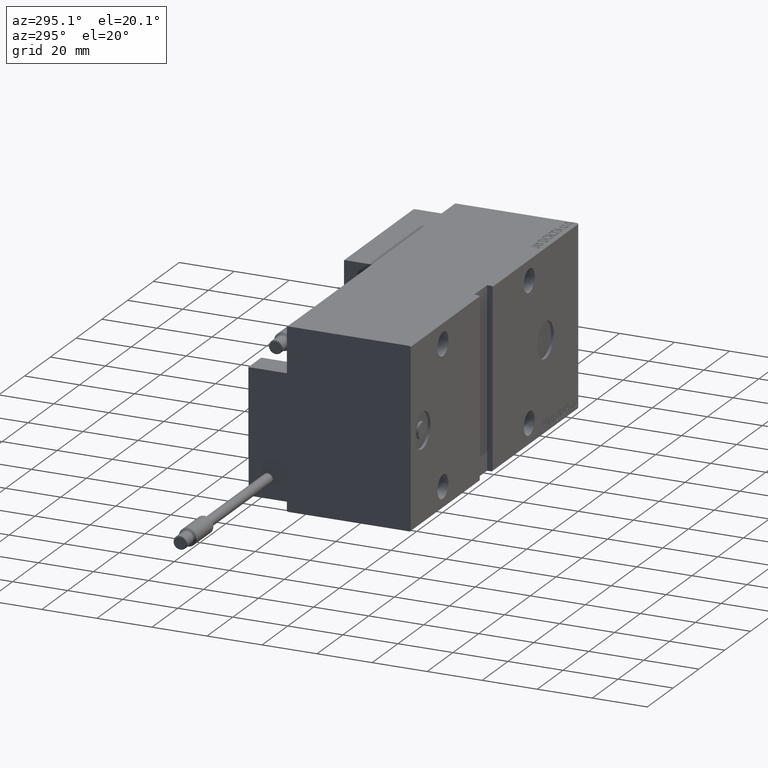
[diagram: clean part render]
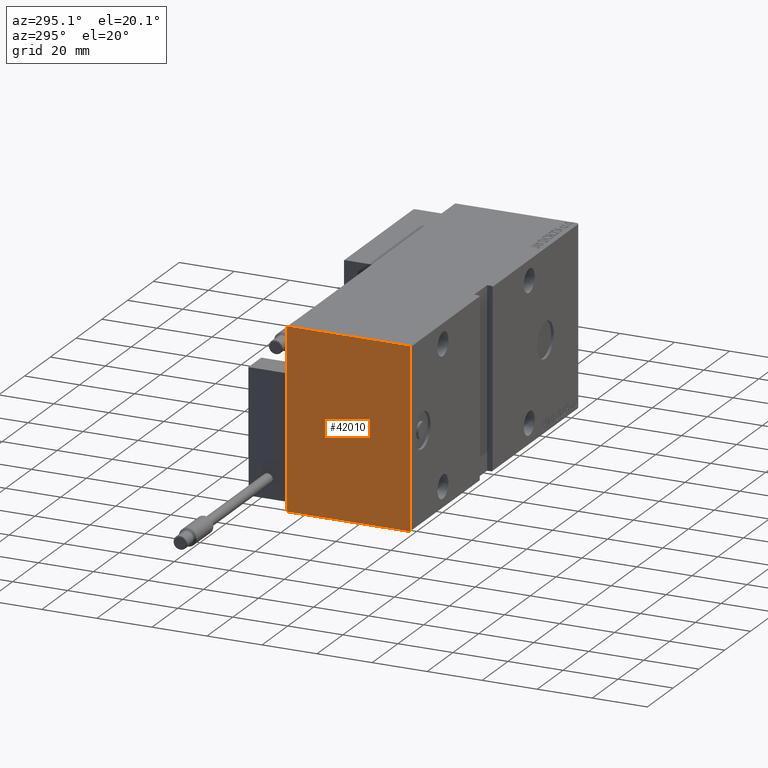
[diagram: same view with one face highlighted and labeled with its STEP entity id]
A machine part, auxiliary view. The second image highlights one B-rep face of the part: STEP entity #42010.
In plain terms, the highlighted planar face has unit normal (-1, 0, 0).
Its self-contained STEP definition (entity closure, byte-faithful):
#268 = EDGE_CURVE ( 'NONE', #49947, #3710, #23605, .T. ) ;
#685 = CARTESIAN_POINT ( 'NONE',  ( 130.0000000000000000, 0.000000000000000000, 0.000000000000000000 ) ) ;
#828 = DIRECTION ( 'NONE',  ( -0.000000000000000000, -0.7071067811865556774, 0.7071067811865393571 ) ) ;
#2192 = EDGE_CURVE ( 'NONE', #35741, #25926, #45321, .T. ) ;
#3710 = VERTEX_POINT ( 'NONE', #13233 ) ;
#4637 = CARTESIAN_POINT ( 'NONE',  ( 130.0000000000000000, 27.34999999999974207, 27.35000000000037446 ) ) ;
#5608 = LINE ( 'NONE', #21094, #39308 ) ;
#6666 = LINE ( 'NONE', #29492, #10370 ) ;
#9494 = LINE ( 'NONE', #37355, #45117 ) ;
#10235 = DIRECTION ( 'NONE',  ( 0.000000000000000000, -1.067522139062650425E-16, 1.000000000000000000 ) ) ;
#10370 = VECTOR ( 'NONE', #10235, 1000.000000000000000 ) ;
#11922 = CARTESIAN_POINT ( 'NONE',  ( 130.0000000000000000, -27.34999999999999076, -27.34999999999999076 ) ) ;
#13233 = CARTESIAN_POINT ( 'NONE',  ( 130.0000000000000000, -22.19999999999998863, -32.50000000000000000 ) ) ;
#14052 = VERTEX_POINT ( 'NONE', #31371 ) ;
#14645 = VERTEX_POINT ( 'NONE', #30223 ) ;
#15235 = DIRECTION ( 'NONE',  ( -0.000000000000000000, 0.7071067811865474617, -0.7071067811865474617 ) ) ;
#15877 = DIRECTION ( 'NONE',  ( 0.000000000000000000, 1.000000000000000000, 0.000000000000000000 ) ) ;
#16187 = DIRECTION ( 'NONE',  ( 0.000000000000000000, 0.000000000000000000, -1.000000000000000000 ) ) ;
#16502 = VECTOR ( 'NONE', #15235, 1000.000000000000114 ) ;
#17592 = DIRECTION ( 'NONE',  ( -0.000000000000000000, 0.7071067811865474617, 0.7071067811865474617 ) ) ;
#19989 = FACE_OUTER_BOUND ( 'NONE', #41732, .T. ) ;
#21094 = CARTESIAN_POINT ( 'NONE',  ( 130.0000000000000000, -27.35000000000000497, 27.35000000000000497 ) ) ;
#21969 = CARTESIAN_POINT ( 'NONE',  ( 130.0000000000000000, -22.49999999999999645, -32.19999999999999574 ) ) ;
#22213 = VECTOR ( 'NONE', #46068, 1000.000000000000000 ) ;
#22637 = EDGE_CURVE ( 'NONE', #3710, #46677, #31596, .T. ) ;
#22964 = ORIENTED_EDGE ( 'NONE', *, *, #268, .T. ) ;
#23154 = AXIS2_PLACEMENT_3D ( 'NONE', #685, #27823, #16187 ) ;
#23605 = LINE ( 'NONE', #11922, #16502 ) ;
#23824 = ORIENTED_EDGE ( 'NONE', *, *, #37458, .T. ) ;
#23931 = LINE ( 'NONE', #4637, #25430 ) ;
#24197 = CARTESIAN_POINT ( 'NONE',  ( 130.0000000000000000, 22.19999999999998153, -32.50000000000000000 ) ) ;
#24349 = CARTESIAN_POINT ( 'NONE',  ( 130.0000000000000000, 22.50000000000000355, -32.19999999999999574 ) ) ;
#25147 = ORIENTED_EDGE ( 'NONE', *, *, #48836, .T. ) ;
#25430 = VECTOR ( 'NONE', #828, 1000.000000000000000 ) ;
#25484 = EDGE_CURVE ( 'NONE', #25926, #14052, #5608, .T. ) ;
#25926 = VERTEX_POINT ( 'NONE', #26978 ) ;
#26978 = CARTESIAN_POINT ( 'NONE',  ( 130.0000000000000000, -22.19999999999999929, 32.50000000000000000 ) ) ;
#27322 = PLANE ( 'NONE',  #23154 ) ;
#27823 = DIRECTION ( 'NONE',  ( 1.000000000000000000, 0.000000000000000000, 0.000000000000000000 ) ) ;
#29279 = ORIENTED_EDGE ( 'NONE', *, *, #2192, .T. ) ;
#29492 = CARTESIAN_POINT ( 'NONE',  ( 130.0000000000000000, 22.50000000000000355, -32.50000000000000000 ) ) ;
#29609 = DIRECTION ( 'NONE',  ( 0.000000000000000000, 0.000000000000000000, -1.000000000000000000 ) ) ;
#30069 = CARTESIAN_POINT ( 'NONE',  ( 130.0000000000000000, 22.19999999999998863, 32.50000000000000711 ) ) ;
#30223 = CARTESIAN_POINT ( 'NONE',  ( 130.0000000000000000, 22.49999999999999645, 32.20000000000000284 ) ) ;
#30340 = CARTESIAN_POINT ( 'NONE',  ( 130.0000000000000000, 22.49999999999999645, 32.50000000000000711 ) ) ;
#31371 = CARTESIAN_POINT ( 'NONE',  ( 130.0000000000000000, -22.49999999999999645, 32.20000000000001705 ) ) ;
#31596 = LINE ( 'NONE', #35130, #44850 ) ;
#33416 = LINE ( 'NONE', #40556, #35451 ) ;
#33441 = EDGE_CURVE ( 'NONE', #46677, #41601, #9494, .T. ) ;
#35130 = CARTESIAN_POINT ( 'NONE',  ( 130.0000000000000000, -22.49999999999999645, -32.50000000000000000 ) ) ;
#35155 = EDGE_CURVE ( 'NONE', #41601, #14645, #6666, .T. ) ;
#35451 = VECTOR ( 'NONE', #29609, 1000.000000000000000 ) ;
#35741 = VERTEX_POINT ( 'NONE', #30069 ) ;
#36544 = DIRECTION ( 'NONE',  ( 0.000000000000000000, -0.7071067811865474617, -0.7071067811865474617 ) ) ;
#37355 = CARTESIAN_POINT ( 'NONE',  ( 130.0000000000000000, 27.34999999999999432, -27.34999999999999432 ) ) ;
#37458 = EDGE_CURVE ( 'NONE', #14645, #35741, #23931, .T. ) ;
#39308 = VECTOR ( 'NONE', #36544, 1000.000000000000114 ) ;
#40556 = CARTESIAN_POINT ( 'NONE',  ( 130.0000000000000000, -22.49999999999999645, 32.50000000000000000 ) ) ;
#41601 = VERTEX_POINT ( 'NONE', #24349 ) ;
#41732 = EDGE_LOOP ( 'NONE', ( #48982, #42235, #43544, #23824, #29279, #47127, #25147, #22964 ) ) ;
#42010 = ADVANCED_FACE ( 'NONE', ( #19989 ), #27322, .T. ) ;
#42235 = ORIENTED_EDGE ( 'NONE', *, *, #33441, .T. ) ;
#43544 = ORIENTED_EDGE ( 'NONE', *, *, #35155, .T. ) ;
#44850 = VECTOR ( 'NONE', #15877, 1000.000000000000000 ) ;
#45117 = VECTOR ( 'NONE', #17592, 1000.000000000000114 ) ;
#45321 = LINE ( 'NONE', #30340, #22213 ) ;
#46068 = DIRECTION ( 'NONE',  ( 0.000000000000000000, -1.000000000000000000, -1.541976423090495633E-16 ) ) ;
#46677 = VERTEX_POINT ( 'NONE', #24197 ) ;
#47127 = ORIENTED_EDGE ( 'NONE', *, *, #25484, .T. ) ;
#48836 = EDGE_CURVE ( 'NONE', #14052, #49947, #33416, .T. ) ;
#48982 = ORIENTED_EDGE ( 'NONE', *, *, #22637, .T. ) ;
#49947 = VERTEX_POINT ( 'NONE', #21969 ) ;